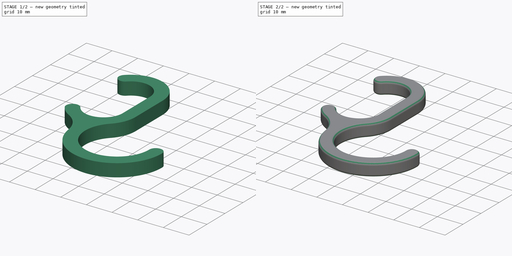
[diagram: build sequence overview — one tinted view per stage of 2, left to right]
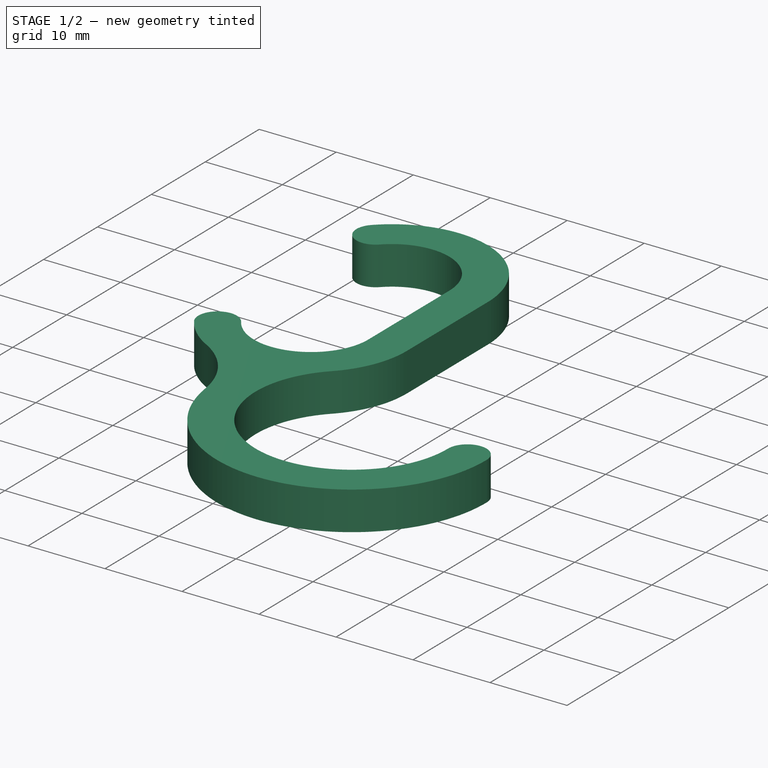
[diagram: stage 1 of 2 — iso view after this stage's code; geometry added in this stage tinted green]
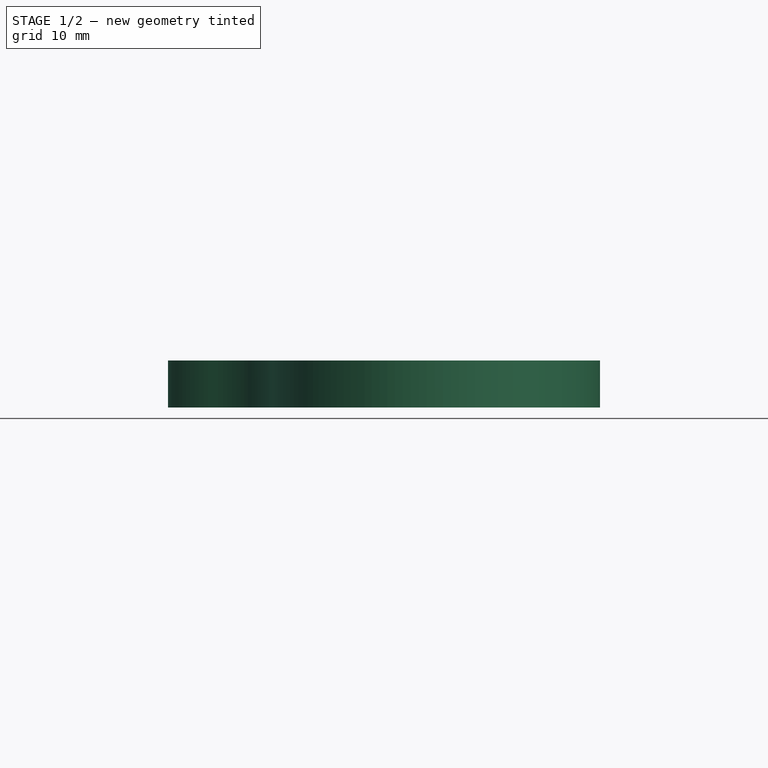
[diagram: stage 1 of 2 — front view after this stage's code; geometry added in this stage tinted green]
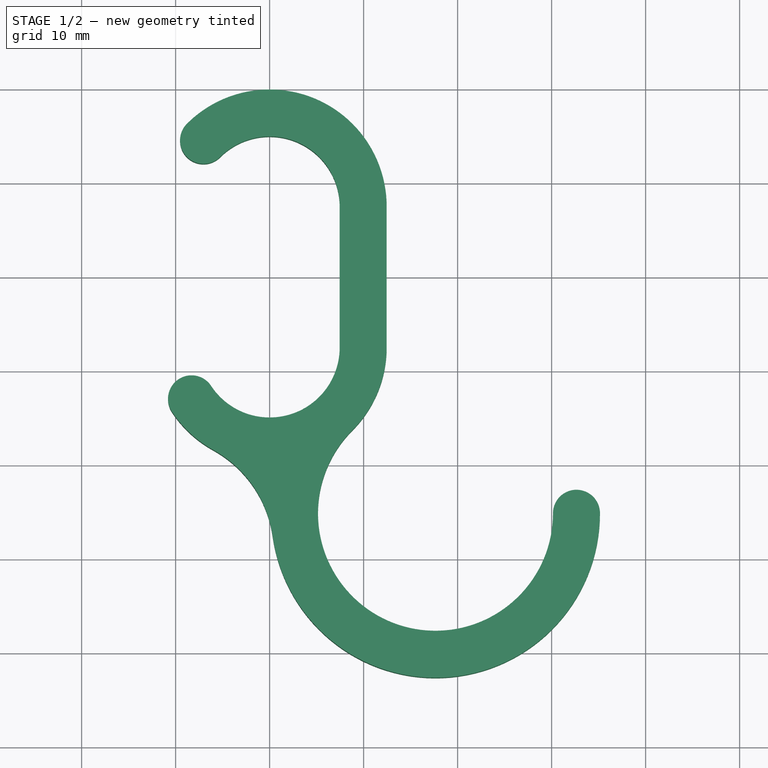
[diagram: stage 1 of 2 — top view after this stage's code; geometry added in this stage tinted green]
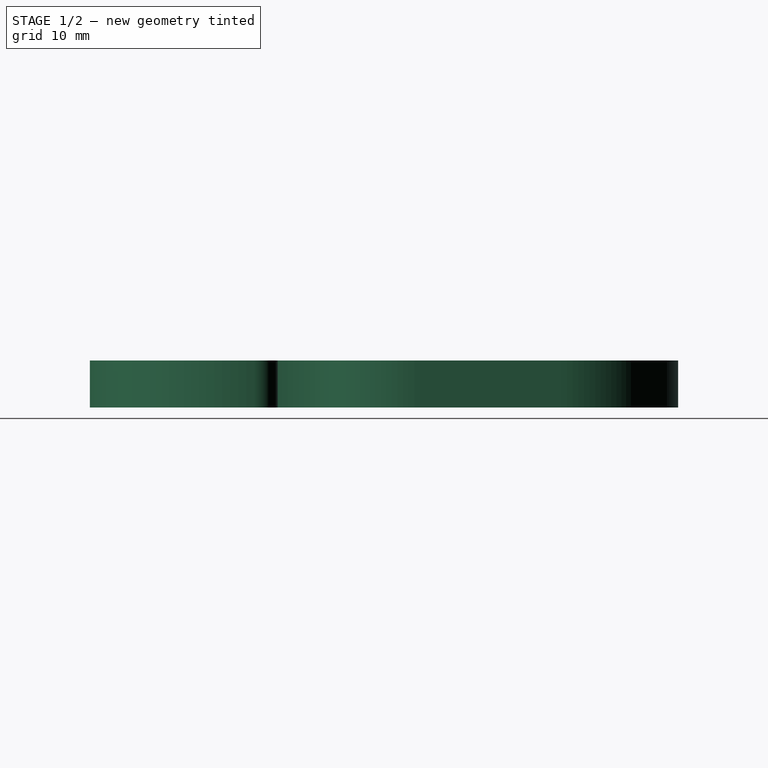
[diagram: stage 1 of 2 — right view after this stage's code; geometry added in this stage tinted green]
FCSTD DOCUMENT  (FreeCAD 1.0R39109 (Git))
Label: hook
License: All rights reserved
objects: Sketcher::SketchObject×1, PartDesign::Pad×1, PartDesign::Fillet×1, PartDesign::Body×1
note: 9 computed .brp shape members not serialized (recipe doc carries the construction recipe); baked Part::Feature solids carry a one-line shape summary decoded from their .brp

FEATURE [Sketcher::SketchObject] Sketch
  ArcFitTolerance = 1e-06
  AttachmentSupport = -> [XY_Plane]
  FullyConstrained = true
  MakeInternals = false
  MapMode = 5
  sketch-geometry (22):
    g0: ArcOfCircle [constr] CenterX=0 CenterY=7.5 CenterZ=0 NormalX=0 NormalY=0 NormalZ=1 AngleXU=0 Radius=7.25 StartAngle=1e-16 EndAngle=3.14159
    g1: ArcOfCircle [constr] CenterX=0 CenterY=-7.5 CenterZ=0 NormalX=0 NormalY=0 NormalZ=1 AngleXU=0 Radius=7.25 StartAngle=3.14159 EndAngle=6.28319
    g2: LineSegment [constr] StartX=7.25 StartY=7.5 StartZ=0 EndX=7.25 EndY=-7.5 EndZ=0
    g3: LineSegment [constr] StartX=-7.25 StartY=7.5 StartZ=0 EndX=-7.25 EndY=-7.5 EndZ=0
    g4: GeomPoint [constr] X=0 Y=14.75 Z=0
    g5: GeomPoint [constr] X=0 Y=-14.75 Z=0
    g6: ArcOfCircle CenterX=0 CenterY=7.5 CenterZ=0 NormalX=0 NormalY=0 NormalZ=1 AngleXU=0 Radius=12.45 StartAngle=0 EndAngle=2.35619
    g7: ArcOfCircle CenterX=-7.03571 CenterY=14.5357 CenterZ=0 NormalX=0 NormalY=0 NormalZ=1 AngleXU=0 Radius=2.5 StartAngle=2.35619 EndAngle=5.49779
    g8: ArcOfCircle [constr] CenterX=9.95 CenterY=7.5 CenterZ=0 NormalX=0 NormalY=0 NormalZ=1 AngleXU=0 Radius=2.5 StartAngle=3.14159 EndAngle=6.28319
    g9: ArcOfCircle CenterX=0 CenterY=7.5 CenterZ=0 NormalX=0 NormalY=0 NormalZ=1 AngleXU=0 Radius=7.45 StartAngle=1e-16 EndAngle=2.35619
    g10: GeomPoint X=0 Y=14.95 Z=0
    g11: LineSegment StartX=7.45 StartY=7.5 StartZ=0 EndX=7.45 EndY=-7.5 EndZ=0
    g12: LineSegment StartX=12.45 StartY=7.5 StartZ=0 EndX=12.45 EndY=-7.5 EndZ=0
    g13: ArcOfCircle CenterX=-8.31415 CenterY=-12.966 CenterZ=0 NormalX=0 NormalY=0 NormalZ=1 AngleXU=0 Radius=2.5 StartAngle=0.581585 EndAngle=3.72318
    g14: ArcOfCircle CenterX=-1.2e-15 CenterY=-7.5 CenterZ=0 NormalX=0 NormalY=0 NormalZ=1 AngleXU=0 Radius=7.45 StartAngle=3.72318 EndAngle=6.28319
    g15: ArcOfCircle CenterX=17.6423 CenterY=-25.1423 CenterZ=0 NormalX=0 NormalY=0 NormalZ=1 AngleXU=0 Radius=17.5 StartAngle=3.28199 EndAngle=6.28319
    g16: ArcOfCircle CenterX=32.6423 CenterY=-25.1423 CenterZ=0 NormalX=0 NormalY=0 NormalZ=1 AngleXU=0 Radius=2.5 StartAngle=3e-16 EndAngle=3.14159
    g17: ArcOfCircle CenterX=17.6423 CenterY=-25.1423 CenterZ=0 NormalX=0 NormalY=0 NormalZ=1 AngleXU=0 Radius=12.5 StartAngle=2.35619 EndAngle=6.28319
    g18: ArcOfCircle CenterX=-4.38856e-05 CenterY=-7.49996 CenterZ=0 NormalX=0 NormalY=0 NormalZ=1 AngleXU=0 Radius=12.45 StartAngle=5.49779 EndAngle=6.28318
    g19: ArcOfCircle CenterX=-1.2e-15 CenterY=-7.5 CenterZ=0 NormalX=0 NormalY=0 NormalZ=1 AngleXU=0 Radius=12.45 StartAngle=3.72318 EndAngle=4.20778
    g20: ArcOfCircle CenterX=-12.0626 CenterY=-29.3403 CenterZ=0 NormalX=0 NormalY=0 NormalZ=1 AngleXU=0 Radius=12.5 StartAngle=0.140394 EndAngle=1.06618
    g21: LineSegment [constr] StartX=-10.4031 StartY=-14.3394 StartZ=0 EndX=3.01939 EndY=-34.7559 EndZ=0
  constraints (51):
    c: Tangent(g0,g2) = 1.5708
    c: Tangent(g0,g3) = -1.5708
    c: Tangent(g1,g2) = 1.5708
    c: Tangent(g1,g3) = -1.5708
    c: Equal(g0,g1)
    c: PointOnObject(g0,g-2)
    c: Symmetric(g0,g1,g-1)
    c: Radius(g1) = 7.25
    c: PointOnObject(g4,g0)
    c: PointOnObject(g5,g1)
    c: PointOnObject(g4,g-2)
    c: PointOnObject(g5,g-2)
    c: DistanceY(g5,g4) = 29.5
    c: Coincident(g6,g9)
    c: Tangent(g9,g8) = 1.5708
    c: Tangent(g9,g7) = 1.5708
    c: Tangent(g6,g8) = -1.5708
    c: Tangent(g6,g7) = -1.5708
    c: Coincident(g6,g0)
    c: PointOnObject(g10,g9)
    c: PointOnObject(g10,g-2)
    c: DistanceY(g4,g10) = 0.2
    c: Horizontal(g0,g8)
    c: Diameter(g8) = 5
    c: Tangent(g11,g8) = -1.5708
    c: Coincident(g12,g6)
    c: Tangent(g12,g8)
    c: Tangent(g14,g13) = 1.5708
    c: Horizontal(g1,g11)
    c: Horizontal(g11,g12)
    c: Coincident(g15,g17)
    c: Tangent(g17,g16) = 1.5708
    c: Tangent(g15,g16) = -1.5708
    c: Horizontal(g15,g16)
    c: Angle(g17) = 3.92699
    c: Diameter(g17) = 25
    c: Equal(g16,g8)
    c: Tangent(g18,g17) = 1.5708
    c: Equal(g9,g14)
    c: Tangent(g14,g11) = 1.5708
    c: Tangent(g18,g12) = 1.5708
    c: Equal(g13,g7)
    c: Equal(g18,g6)
    c: Coincident(g19,g14)
    c: Tangent(g19,g13) = -1.5708
    c: Tangent(g20,g19) = 1.5708
    c: Tangent(g20,g15) = 1.5708
    c: Equal(g20,g17)
    c: Tangent(g21,g13) = -1.5708
    c: Tangent(g21,g15) = -1.5708
    c: Angle(g6) = 2.35619
FEATURE [PartDesign::Pad] Pad
  Direction = (0,0,1)
  Length = 5
  Length2 = 10
  Profile = -> Sketch
  ReferenceAxis = -> Sketch [N_Axis]
  Suppressed = false
  Type = 0
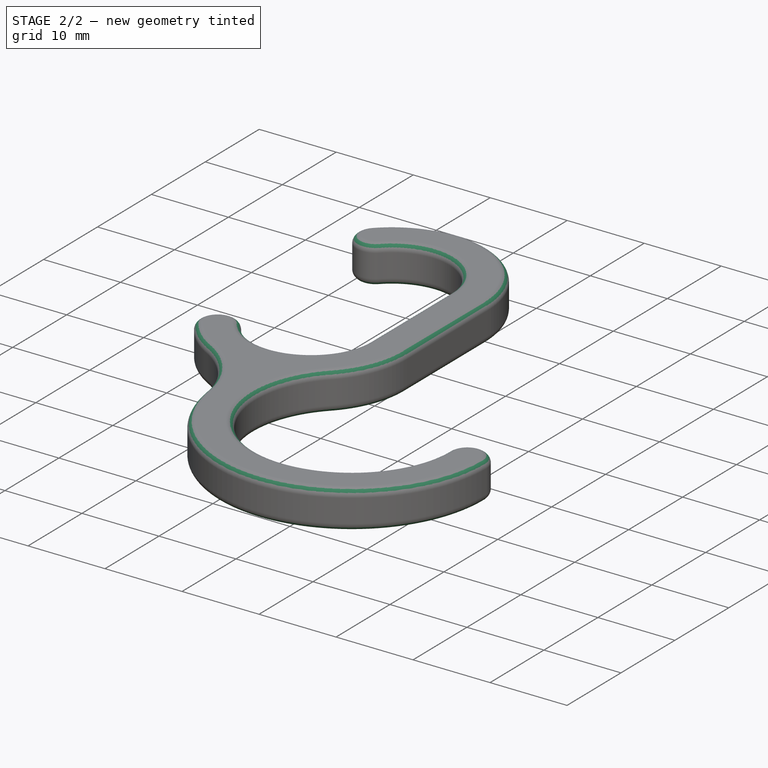
[diagram: stage 2 of 2 — iso view after this stage's code; geometry added in this stage tinted green]
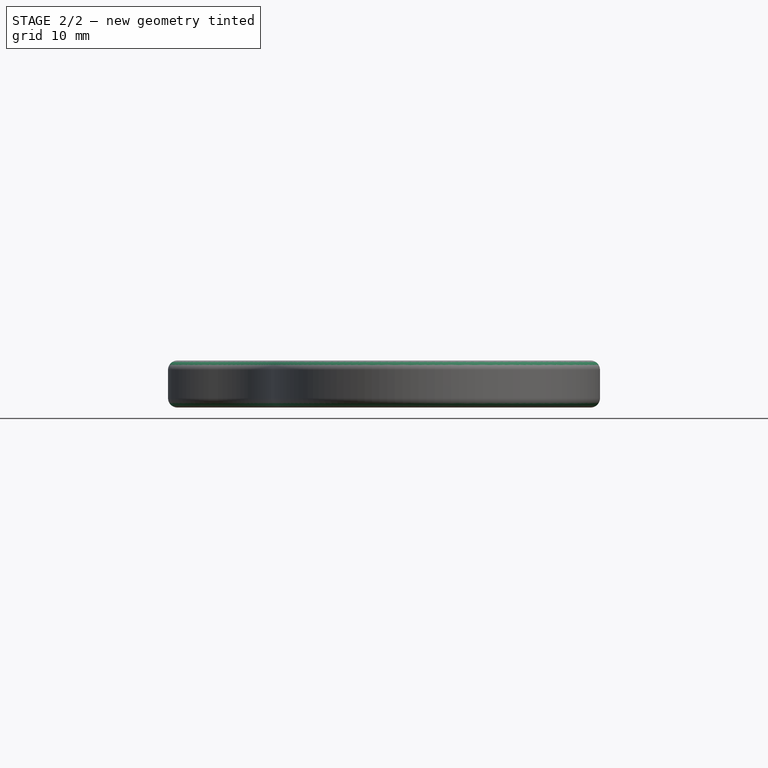
[diagram: stage 2 of 2 — front view after this stage's code; geometry added in this stage tinted green]
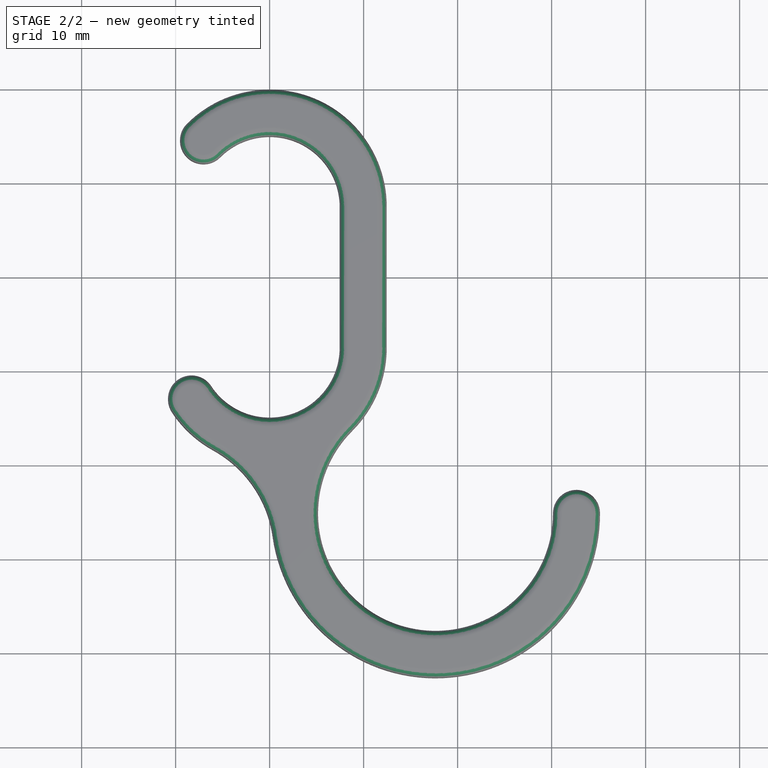
[diagram: stage 2 of 2 — top view after this stage's code; geometry added in this stage tinted green]
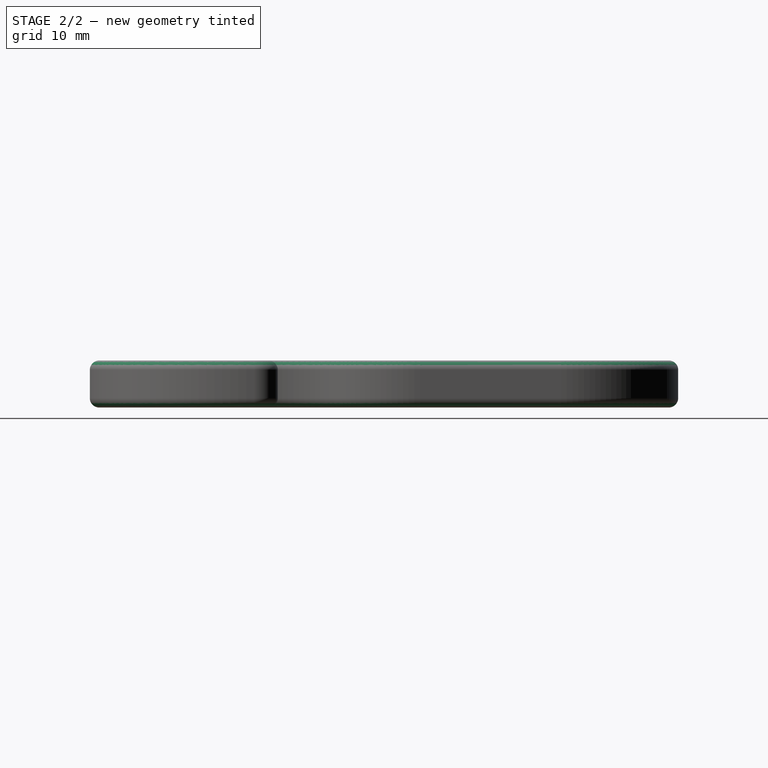
[diagram: stage 2 of 2 — right view after this stage's code; geometry added in this stage tinted green]
FEATURE [PartDesign::Fillet] Fillet
  Base = -> Pad
  BaseFeature = -> Pad
  Radius = 1
  SupportTransform = false
  Suppressed = false
  UseAllEdges = true
FEATURE [PartDesign::Body] Body
  AllowCompound = true
  Group = -> [Sketch,Pad,Fillet]
  Origin = -> Origin
  Tip = -> Fillet
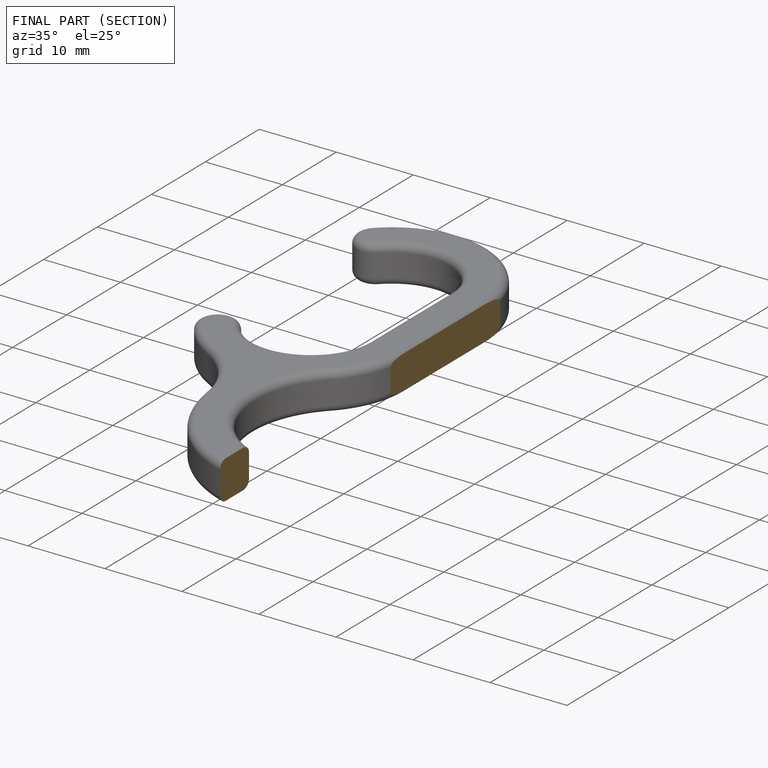
[diagram: finished part — half-section view (interior)]
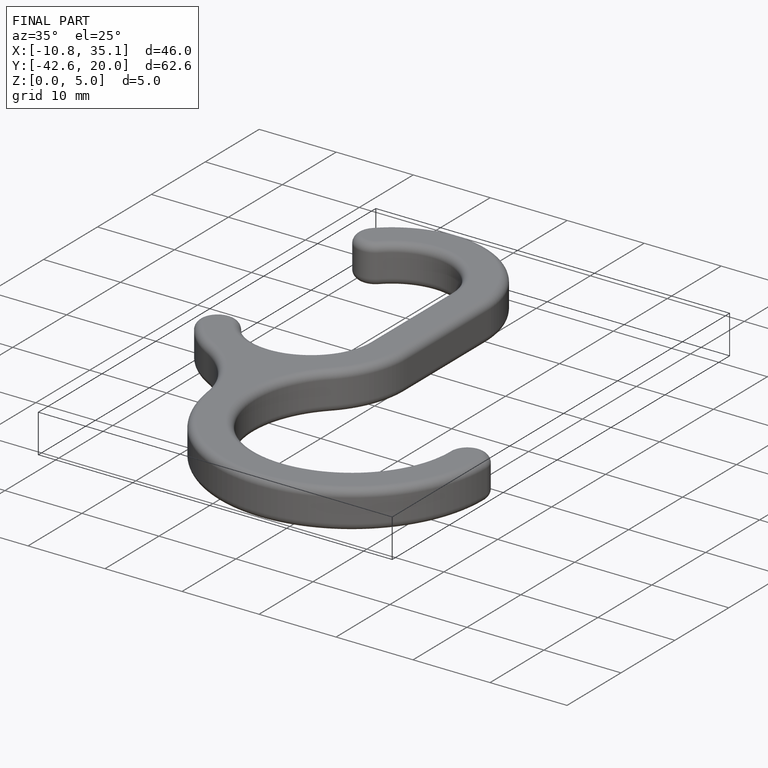
[diagram: finished part — iso view with bounding-box wireframe]
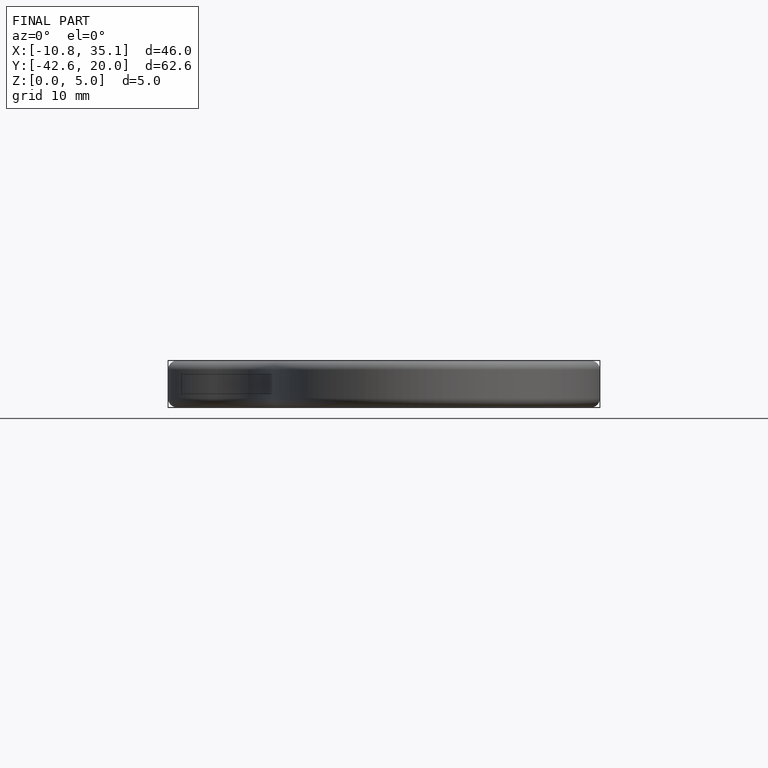
[diagram: finished part — front view with bounding-box wireframe]
